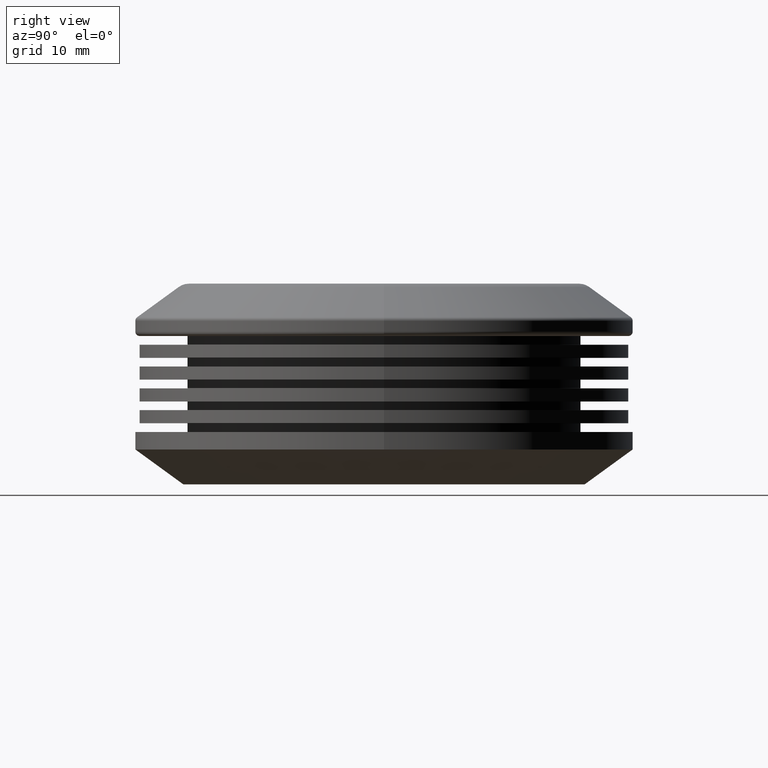
[diagram: clean part render]
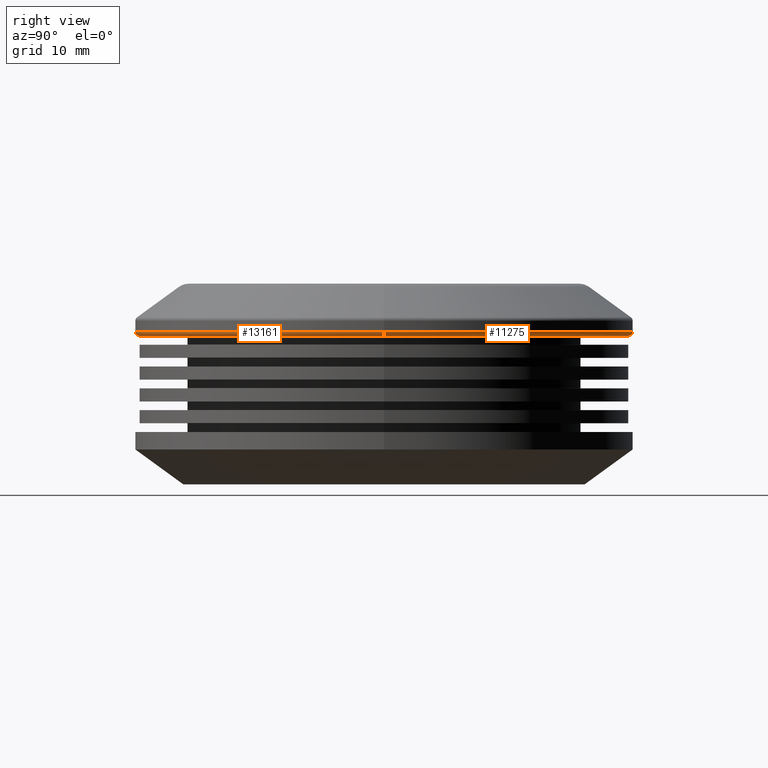
[diagram: same view with one multi-face feature highlighted, each face labeled with its STEP entity id]
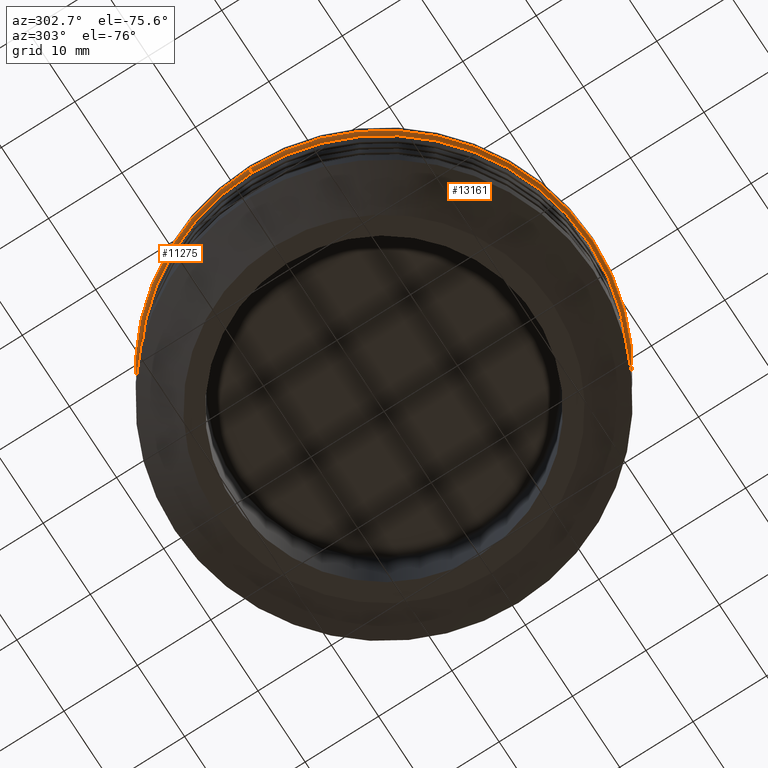
[diagram: same view with one multi-face feature highlighted, each face labeled with its STEP entity id]
A machine part, right view. The highlighted faces form ONE feature: a constant-radius fillet chain: 2 tangent blend faces with common blend radius 0.5 mm. The faces share edges in the B-rep.
A second angle (auxiliary view) of the same feature is appended — it is thin or edge-on in the first view.
Their STEP definitions:
[1] entity #13161 (Torus):
#36 = DIRECTION ( 'NONE',  ( -0.0000000000000000000, -0.0000000000000000000, 1.000000000000000000 ) ) ;
#236 = CARTESIAN_POINT ( 'NONE',  ( -28.50000000000000000, 3.490243377569956500E-015, -2.499999999999998700 ) ) ;
#469 = ORIENTED_EDGE ( 'NONE', *, *, #2269, .T. ) ;
#1052 = AXIS2_PLACEMENT_3D ( 'NONE', #4820, #11649, #12866 ) ;
#1063 = CARTESIAN_POINT ( 'NONE',  ( 28.00000000000000000, 0.0000000000000000000, -2.999999999999999100 ) ) ;
#2269 = EDGE_CURVE ( 'NONE', #11356, #4354, #13297, .T. ) ;
#2891 = EDGE_CURVE ( 'NONE', #11338, #13077, #14698, .T. ) ;
#3065 = CARTESIAN_POINT ( 'NONE',  ( 0.0000000000000000000, 0.0000000000000000000, -2.499999999999998700 ) ) ;
#3744 = CARTESIAN_POINT ( 'NONE',  ( 0.0000000000000000000, 0.0000000000000000000, -2.999999999999999100 ) ) ;
#4191 = DIRECTION ( 'NONE',  ( 0.0000000000000000000, 0.0000000000000000000, -1.000000000000000000 ) ) ;
#4354 = VERTEX_POINT ( 'NONE', #7180 ) ;
#4720 = AXIS2_PLACEMENT_3D ( 'NONE', #6606, #14462, #4191 ) ;
#4820 = CARTESIAN_POINT ( 'NONE',  ( -28.00000000000000000, 3.429011037612589300E-015, -2.499999999999998700 ) ) ;
#5809 = EDGE_LOOP ( 'NONE', ( #12238, #11237, #469, #12264 ) ) ;
#6525 = FACE_OUTER_BOUND ( 'NONE', #5809, .T. ) ;
#6542 = EDGE_CURVE ( 'NONE', #13077, #4354, #10209, .T. ) ;
#6606 = CARTESIAN_POINT ( 'NONE',  ( 28.00000000000000000, 0.0000000000000000000, -2.499999999999998700 ) ) ;
#6693 = AXIS2_PLACEMENT_3D ( 'NONE', #3065, #11045, #7477 ) ;
#6882 = DIRECTION ( 'NONE',  ( 1.000000000000000000, 0.0000000000000000000, 0.0000000000000000000 ) ) ;
#7180 = CARTESIAN_POINT ( 'NONE',  ( 28.50000000000000000, 0.0000000000000000000, -2.499999999999998700 ) ) ;
#7477 = DIRECTION ( 'NONE',  ( 1.000000000000000000, 0.0000000000000000000, 0.0000000000000000000 ) ) ;
#8320 = TOROIDAL_SURFACE ( 'NONE', #6693, 28.00000000000000000, 0.5000000000000000000 ) ;
#8385 = DIRECTION ( 'NONE',  ( 1.000000000000000000, 0.0000000000000000000, 0.0000000000000000000 ) ) ;
#10209 = CIRCLE ( 'NONE', #14711, 28.50000000000000000 ) ;
#10658 = DIRECTION ( 'NONE',  ( 0.0000000000000000000, 0.0000000000000000000, -1.000000000000000000 ) ) ;
#11045 = DIRECTION ( 'NONE',  ( -0.0000000000000000000, -0.0000000000000000000, 1.000000000000000000 ) ) ;
#11237 = ORIENTED_EDGE ( 'NONE', *, *, #14166, .F. ) ;
#11338 = VERTEX_POINT ( 'NONE', #13627 ) ;
#11356 = VERTEX_POINT ( 'NONE', #1063 ) ;
#11649 = DIRECTION ( 'NONE',  ( 1.224646799147353200E-016, 1.000000000000000000, 0.0000000000000000000 ) ) ;
#12176 = AXIS2_PLACEMENT_3D ( 'NONE', #3744, #10658, #8385 ) ;
#12238 = ORIENTED_EDGE ( 'NONE', *, *, #2891, .F. ) ;
#12264 = ORIENTED_EDGE ( 'NONE', *, *, #6542, .F. ) ;
#12611 = CARTESIAN_POINT ( 'NONE',  ( 0.0000000000000000000, 0.0000000000000000000, -2.499999999999998700 ) ) ;
#12866 = DIRECTION ( 'NONE',  ( -1.000000000000000000, 1.224646799147349500E-016, 0.0000000000000000000 ) ) ;
#13077 = VERTEX_POINT ( 'NONE', #236 ) ;
#13161 = ADVANCED_FACE ( 'NONE', ( #6525 ), #8320, .T. ) ;
#13173 = CIRCLE ( 'NONE', #12176, 28.00000000000000000 ) ;
#13297 = CIRCLE ( 'NONE', #4720, 0.5000000000000000000 ) ;
#13627 = CARTESIAN_POINT ( 'NONE',  ( -28.00000000000000000, 3.459627207591272700E-015, -2.999999999999999100 ) ) ;
#14166 = EDGE_CURVE ( 'NONE', #11356, #11338, #13173, .T. ) ;
#14462 = DIRECTION ( 'NONE',  ( 0.0000000000000000000, -1.000000000000000000, 0.0000000000000000000 ) ) ;
#14698 = CIRCLE ( 'NONE', #1052, 0.5000000000000004400 ) ;
#14711 = AXIS2_PLACEMENT_3D ( 'NONE', #12611, #36, #6882 ) ;
[2] entity #11275 (Torus):
#236 = CARTESIAN_POINT ( 'NONE',  ( -28.50000000000000000, 3.490243377569956500E-015, -2.499999999999998700 ) ) ;
#1052 = AXIS2_PLACEMENT_3D ( 'NONE', #4820, #11649, #12866 ) ;
#1063 = CARTESIAN_POINT ( 'NONE',  ( 28.00000000000000000, 0.0000000000000000000, -2.999999999999999100 ) ) ;
#1558 = EDGE_CURVE ( 'NONE', #4354, #13077, #10270, .T. ) ;
#2269 = EDGE_CURVE ( 'NONE', #11356, #4354, #13297, .T. ) ;
#2891 = EDGE_CURVE ( 'NONE', #11338, #13077, #14698, .T. ) ;
#3766 = CARTESIAN_POINT ( 'NONE',  ( 0.0000000000000000000, 0.0000000000000000000, -2.999999999999999100 ) ) ;
#4146 = DIRECTION ( 'NONE',  ( 1.000000000000000000, 0.0000000000000000000, 0.0000000000000000000 ) ) ;
#4191 = DIRECTION ( 'NONE',  ( 0.0000000000000000000, 0.0000000000000000000, -1.000000000000000000 ) ) ;
#4245 = CARTESIAN_POINT ( 'NONE',  ( 0.0000000000000000000, 0.0000000000000000000, -2.499999999999998700 ) ) ;
#4354 = VERTEX_POINT ( 'NONE', #7180 ) ;
#4720 = AXIS2_PLACEMENT_3D ( 'NONE', #6606, #14462, #4191 ) ;
#4820 = CARTESIAN_POINT ( 'NONE',  ( -28.00000000000000000, 3.429011037612589300E-015, -2.499999999999998700 ) ) ;
#6367 = DIRECTION ( 'NONE',  ( 1.000000000000000000, 0.0000000000000000000, 0.0000000000000000000 ) ) ;
#6606 = CARTESIAN_POINT ( 'NONE',  ( 28.00000000000000000, 0.0000000000000000000, -2.499999999999998700 ) ) ;
#6712 = TOROIDAL_SURFACE ( 'NONE', #9104, 28.00000000000000000, 0.5000000000000000000 ) ;
#6795 = EDGE_CURVE ( 'NONE', #11338, #11356, #9112, .T. ) ;
#7180 = CARTESIAN_POINT ( 'NONE',  ( 28.50000000000000000, 0.0000000000000000000, -2.499999999999998700 ) ) ;
#7517 = DIRECTION ( 'NONE',  ( -0.0000000000000000000, -0.0000000000000000000, 1.000000000000000000 ) ) ;
#7609 = ORIENTED_EDGE ( 'NONE', *, *, #6795, .F. ) ;
#8095 = AXIS2_PLACEMENT_3D ( 'NONE', #3766, #12935, #6367 ) ;
#9104 = AXIS2_PLACEMENT_3D ( 'NONE', #12987, #11914, #4146 ) ;
#9112 = CIRCLE ( 'NONE', #8095, 28.00000000000000000 ) ;
#10207 = AXIS2_PLACEMENT_3D ( 'NONE', #4245, #7517, #14516 ) ;
#10270 = CIRCLE ( 'NONE', #10207, 28.50000000000000000 ) ;
#10785 = ORIENTED_EDGE ( 'NONE', *, *, #1558, .F. ) ;
#11275 = ADVANCED_FACE ( 'NONE', ( #12084 ), #6712, .T. ) ;
#11338 = VERTEX_POINT ( 'NONE', #13627 ) ;
#11356 = VERTEX_POINT ( 'NONE', #1063 ) ;
#11649 = DIRECTION ( 'NONE',  ( 1.224646799147353200E-016, 1.000000000000000000, 0.0000000000000000000 ) ) ;
#11720 = ORIENTED_EDGE ( 'NONE', *, *, #2269, .F. ) ;
#11914 = DIRECTION ( 'NONE',  ( -0.0000000000000000000, -0.0000000000000000000, 1.000000000000000000 ) ) ;
#12084 = FACE_OUTER_BOUND ( 'NONE', #12954, .T. ) ;
#12866 = DIRECTION ( 'NONE',  ( -1.000000000000000000, 1.224646799147349500E-016, 0.0000000000000000000 ) ) ;
#12935 = DIRECTION ( 'NONE',  ( 0.0000000000000000000, 0.0000000000000000000, -1.000000000000000000 ) ) ;
#12954 = EDGE_LOOP ( 'NONE', ( #7609, #14080, #10785, #11720 ) ) ;
#12987 = CARTESIAN_POINT ( 'NONE',  ( 0.0000000000000000000, 0.0000000000000000000, -2.499999999999998700 ) ) ;
#13077 = VERTEX_POINT ( 'NONE', #236 ) ;
#13297 = CIRCLE ( 'NONE', #4720, 0.5000000000000000000 ) ;
#13627 = CARTESIAN_POINT ( 'NONE',  ( -28.00000000000000000, 3.459627207591272700E-015, -2.999999999999999100 ) ) ;
#14080 = ORIENTED_EDGE ( 'NONE', *, *, #2891, .T. ) ;
#14462 = DIRECTION ( 'NONE',  ( 0.0000000000000000000, -1.000000000000000000, 0.0000000000000000000 ) ) ;
#14516 = DIRECTION ( 'NONE',  ( 1.000000000000000000, 0.0000000000000000000, 0.0000000000000000000 ) ) ;
#14698 = CIRCLE ( 'NONE', #1052, 0.5000000000000004400 ) ;